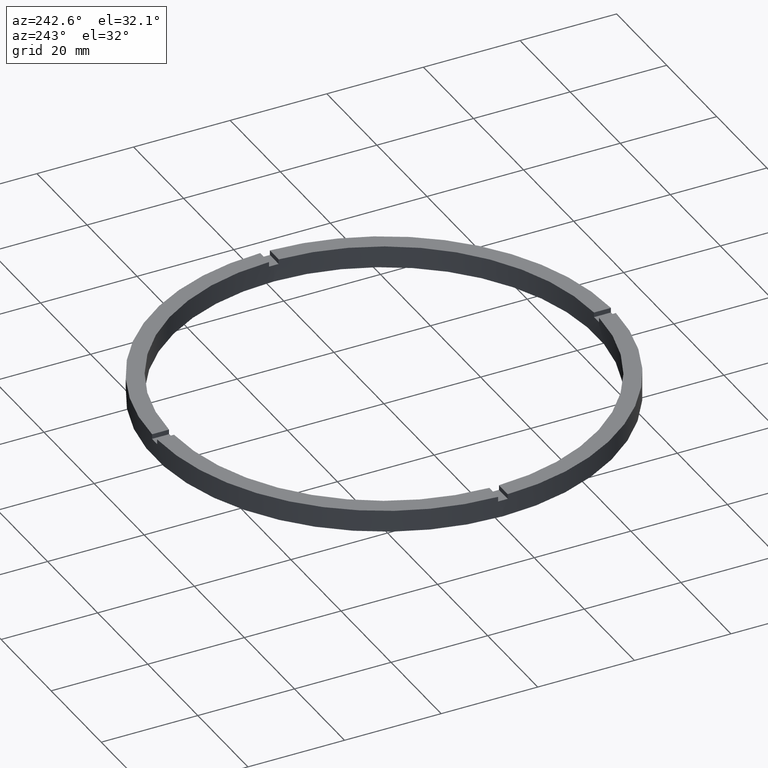
[diagram: clean part render]
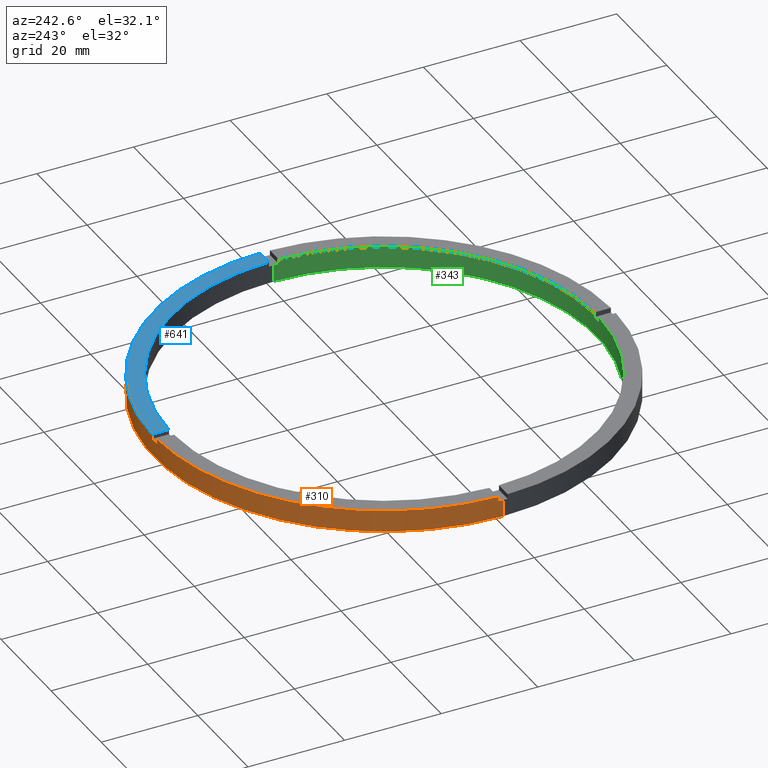
[diagram: same view with three faces highlighted in distinct colors, each labeled with its STEP entity id]
A machine part, auxiliary view with three faces highlighted in distinct colors.
Their STEP definitions:

[orange] entity #310 — the highlighted cylindrical surface (partial cylindrical patch) has radius 47.5 mm, axis along (-0, -0, -1).
#32 = CARTESIAN_POINT ( 'NONE',  ( 0.000000000000000000, 0.000000000000000000, 3.499999999999999556 ) ) ;
#35 = CARTESIAN_POINT ( 'NONE',  ( 0.000000000000000000, 0.000000000000000000, 0.000000000000000000 ) ) ;
#39 = CARTESIAN_POINT ( 'NONE',  ( -47.48947251760120736, 0.9999999999999694689, 4.500000000000000000 ) ) ;
#49 = CARTESIAN_POINT ( 'NONE',  ( 47.48947251760121446, 0.9999999999998443467, 3.499999999999999556 ) ) ;
#64 = EDGE_CURVE ( 'NONE', #743, #190, #88, .T. ) ;
#67 = ORIENTED_EDGE ( 'NONE', *, *, #69, .F. ) ;
#68 = ORIENTED_EDGE ( 'NONE', *, *, #64, .T. ) ;
#69 = EDGE_CURVE ( 'NONE', #743, #478, #366, .T. ) ;
#70 = CARTESIAN_POINT ( 'NONE',  ( -47.50000000000000711, 0.000000000000000000, 0.000000000000000000 ) ) ;
#79 = AXIS2_PLACEMENT_3D ( 'NONE', #363, #173, #102 ) ;
#88 = LINE ( 'NONE', #369, #619 ) ;
#100 = CARTESIAN_POINT ( 'NONE',  ( 0.000000000000000000, 0.000000000000000000, 4.500000000000000000 ) ) ;
#102 = DIRECTION ( 'NONE',  ( 1.000000000000000000, 0.000000000000000000, 0.000000000000000000 ) ) ;
#111 = VECTOR ( 'NONE', #268, 1000.000000000000000 ) ;
#112 = CIRCLE ( 'NONE', #79, 47.50000000000000711 ) ;
#128 = VECTOR ( 'NONE', #392, 1000.000000000000000 ) ;
#139 = CARTESIAN_POINT ( 'NONE',  ( 47.50000000000000711, 5.817072295949929004E-15, 3.499999999999999556 ) ) ;
#153 = EDGE_CURVE ( 'NONE', #741, #479, #112, .T. ) ;
#155 = DIRECTION ( 'NONE',  ( 1.000000000000000000, 0.000000000000000000, 0.000000000000000000 ) ) ;
#171 = CARTESIAN_POINT ( 'NONE',  ( 47.48947251760121446, 0.9999999999998443467, 4.500000000000000000 ) ) ;
#173 = DIRECTION ( 'NONE',  ( 0.000000000000000000, 0.000000000000000000, 1.000000000000000000 ) ) ;
#175 = ORIENTED_EDGE ( 'NONE', *, *, #360, .T. ) ;
#178 = DIRECTION ( 'NONE',  ( 0.000000000000000000, -0.000000000000000000, 1.000000000000000000 ) ) ;
#179 = ORIENTED_EDGE ( 'NONE', *, *, #649, .T. ) ;
#186 = VERTEX_POINT ( 'NONE', #171 ) ;
#190 = VERTEX_POINT ( 'NONE', #423 ) ;
#196 = CARTESIAN_POINT ( 'NONE',  ( -47.50000000000000711, 0.000000000000000000, 4.500000000000000000 ) ) ;
#202 = VERTEX_POINT ( 'NONE', #70 ) ;
#209 = DIRECTION ( 'NONE',  ( 0.000000000000000000, 0.000000000000000000, 1.000000000000000000 ) ) ;
#212 = ORIENTED_EDGE ( 'NONE', *, *, #468, .T. ) ;
#232 = CARTESIAN_POINT ( 'NONE',  ( 0.9999999999999735767, 47.48947251760120736, 4.500000000000000000 ) ) ;
#244 = CYLINDRICAL_SURFACE ( 'NONE', #302, 47.50000000000000711 ) ;
#245 = CIRCLE ( 'NONE', #431, 47.50000000000000711 ) ;
#253 = DIRECTION ( 'NONE',  ( -0.000000000000000000, -0.000000000000000000, -1.000000000000000000 ) ) ;
#254 = VECTOR ( 'NONE', #464, 1000.000000000000000 ) ;
#256 = LINE ( 'NONE', #593, #254 ) ;
#268 = DIRECTION ( 'NONE',  ( -0.000000000000000000, -0.000000000000000000, -1.000000000000000000 ) ) ;
#269 = EDGE_CURVE ( 'NONE', #346, #699, #245, .T. ) ;
#271 = FACE_OUTER_BOUND ( 'NONE', #336, .T. ) ;
#289 = DIRECTION ( 'NONE',  ( 1.000000000000000000, 0.000000000000000000, 0.000000000000000000 ) ) ;
#292 = EDGE_CURVE ( 'NONE', #186, #745, #533, .T. ) ;
#302 = AXIS2_PLACEMENT_3D ( 'NONE', #558, #253, #604 ) ;
#305 = DIRECTION ( 'NONE',  ( 0.000000000000000000, 0.000000000000000000, 1.000000000000000000 ) ) ;
#310 = ADVANCED_FACE ( 'NONE', ( #271 ), #244, .T. ) ;
#323 = ORIENTED_EDGE ( 'NONE', *, *, #710, .F. ) ;
#324 = VERTEX_POINT ( 'NONE', #648 ) ;
#328 = ORIENTED_EDGE ( 'NONE', *, *, #624, .F. ) ;
#330 = DIRECTION ( 'NONE',  ( -0.000000000000000000, -0.000000000000000000, -1.000000000000000000 ) ) ;
#336 = EDGE_LOOP ( 'NONE', ( #67, #68, #179, #328, #323, #212, #410, #692, #476, #340, #701, #175 ) ) ;
#338 = CARTESIAN_POINT ( 'NONE',  ( -47.48947251760120736, 0.9999999999999694689, 4.500000000000000000 ) ) ;
#340 = ORIENTED_EDGE ( 'NONE', *, *, #680, .T. ) ;
#346 = VERTEX_POINT ( 'NONE', #696 ) ;
#360 = EDGE_CURVE ( 'NONE', #186, #478, #256, .T. ) ;
#363 = CARTESIAN_POINT ( 'NONE',  ( 0.000000000000000000, 0.000000000000000000, 4.500000000000000000 ) ) ;
#365 = DIRECTION ( 'NONE',  ( 1.000000000000000000, 0.000000000000000000, 0.000000000000000000 ) ) ;
#366 = CIRCLE ( 'NONE', #514, 47.50000000000000711 ) ;
#369 = CARTESIAN_POINT ( 'NONE',  ( 47.50000000000000711, 5.817072295949929004E-15, 4.500000000000000000 ) ) ;
#380 = CIRCLE ( 'NONE', #777, 47.50000000000000711 ) ;
#383 = VECTOR ( 'NONE', #385, 1000.000000000000000 ) ;
#385 = DIRECTION ( 'NONE',  ( 0.000000000000000000, 0.000000000000000000, 1.000000000000000000 ) ) ;
#387 = DIRECTION ( 'NONE',  ( 1.000000000000000000, 0.000000000000000000, 0.000000000000000000 ) ) ;
#392 = DIRECTION ( 'NONE',  ( 0.000000000000000000, 0.000000000000000000, 1.000000000000000000 ) ) ;
#395 = CARTESIAN_POINT ( 'NONE',  ( -1.000000000000026423, 47.48947251760120736, 4.500000000000000000 ) ) ;
#398 = LINE ( 'NONE', #338, #383 ) ;
#406 = LINE ( 'NONE', #196, #421 ) ;
#410 = ORIENTED_EDGE ( 'NONE', *, *, #153, .F. ) ;
#415 = CIRCLE ( 'NONE', #446, 47.50000000000000711 ) ;
#417 = LINE ( 'NONE', #564, #111 ) ;
#421 = VECTOR ( 'NONE', #330, 1000.000000000000000 ) ;
#423 = CARTESIAN_POINT ( 'NONE',  ( 47.50000000000000711, 5.817072295949929004E-15, 0.000000000000000000 ) ) ;
#431 = AXIS2_PLACEMENT_3D ( 'NONE', #32, #178, #365 ) ;
#446 = AXIS2_PLACEMENT_3D ( 'NONE', #639, #682, #387 ) ;
#464 = DIRECTION ( 'NONE',  ( -0.000000000000000000, -0.000000000000000000, -1.000000000000000000 ) ) ;
#468 = EDGE_CURVE ( 'NONE', #510, #479, #398, .T. ) ;
#470 = CARTESIAN_POINT ( 'NONE',  ( 0.9999999999999735767, 47.48947251760120736, 4.500000000000000000 ) ) ;
#476 = ORIENTED_EDGE ( 'NONE', *, *, #269, .F. ) ;
#478 = VERTEX_POINT ( 'NONE', #49 ) ;
#479 = VERTEX_POINT ( 'NONE', #39 ) ;
#510 = VERTEX_POINT ( 'NONE', #683 ) ;
#514 = AXIS2_PLACEMENT_3D ( 'NONE', #756, #209, #289 ) ;
#525 = DIRECTION ( 'NONE',  ( -0.000000000000000000, -0.000000000000000000, -1.000000000000000000 ) ) ;
#533 = CIRCLE ( 'NONE', #609, 47.50000000000000711 ) ;
#558 = CARTESIAN_POINT ( 'NONE',  ( 0.000000000000000000, 0.000000000000000000, 4.500000000000000000 ) ) ;
#564 = CARTESIAN_POINT ( 'NONE',  ( -1.000000000000026423, 47.48947251760120736, 4.500000000000000000 ) ) ;
#592 = CARTESIAN_POINT ( 'NONE',  ( -1.000000000000026423, 47.48947251760120736, 3.499999999999999556 ) ) ;
#593 = CARTESIAN_POINT ( 'NONE',  ( 47.48947251760121446, 0.9999999999998443467, 4.500000000000000000 ) ) ;
#596 = EDGE_CURVE ( 'NONE', #741, #699, #417, .T. ) ;
#604 = DIRECTION ( 'NONE',  ( -1.000000000000000000, 0.000000000000000000, 0.000000000000000000 ) ) ;
#609 = AXIS2_PLACEMENT_3D ( 'NONE', #100, #305, #155 ) ;
#619 = VECTOR ( 'NONE', #525, 1000.000000000000000 ) ;
#624 = EDGE_CURVE ( 'NONE', #324, #202, #406, .T. ) ;
#628 = DIRECTION ( 'NONE',  ( 1.000000000000000000, 0.000000000000000000, 0.000000000000000000 ) ) ;
#639 = CARTESIAN_POINT ( 'NONE',  ( 0.000000000000000000, 0.000000000000000000, 3.499999999999999556 ) ) ;
#648 = CARTESIAN_POINT ( 'NONE',  ( -47.50000000000000711, 0.000000000000000000, 3.499999999999999556 ) ) ;
#649 = EDGE_CURVE ( 'NONE', #190, #202, #380, .T. ) ;
#658 = LINE ( 'NONE', #470, #128 ) ;
#680 = EDGE_CURVE ( 'NONE', #346, #745, #658, .T. ) ;
#682 = DIRECTION ( 'NONE',  ( 0.000000000000000000, 0.000000000000000000, 1.000000000000000000 ) ) ;
#683 = CARTESIAN_POINT ( 'NONE',  ( -47.48947251760120736, 0.9999999999999694689, 3.499999999999999556 ) ) ;
#692 = ORIENTED_EDGE ( 'NONE', *, *, #596, .T. ) ;
#696 = CARTESIAN_POINT ( 'NONE',  ( 0.9999999999999735767, 47.48947251760120736, 3.499999999999999556 ) ) ;
#699 = VERTEX_POINT ( 'NONE', #592 ) ;
#701 = ORIENTED_EDGE ( 'NONE', *, *, #292, .F. ) ;
#710 = EDGE_CURVE ( 'NONE', #510, #324, #415, .T. ) ;
#741 = VERTEX_POINT ( 'NONE', #395 ) ;
#743 = VERTEX_POINT ( 'NONE', #139 ) ;
#745 = VERTEX_POINT ( 'NONE', #232 ) ;
#756 = CARTESIAN_POINT ( 'NONE',  ( 0.000000000000000000, 0.000000000000000000, 3.499999999999999556 ) ) ;
#765 = DIRECTION ( 'NONE',  ( 0.000000000000000000, 0.000000000000000000, 1.000000000000000000 ) ) ;
#777 = AXIS2_PLACEMENT_3D ( 'NONE', #35, #765, #628 ) ;

[blue] entity #641 — the highlighted planar face has unit normal (0, 0, 1).
#7 = LINE ( 'NONE', #95, #544 ) ;
#87 = DIRECTION ( 'NONE',  ( 0.000000000000000000, 1.000000000000000000, 0.000000000000000000 ) ) ;
#95 = CARTESIAN_POINT ( 'NONE',  ( 0.9999999999999735767, 37.50000000000000711, 4.500000000000000000 ) ) ;
#96 = ORIENTED_EDGE ( 'NONE', *, *, #638, .F. ) ;
#100 = CARTESIAN_POINT ( 'NONE',  ( 0.000000000000000000, 0.000000000000000000, 4.500000000000000000 ) ) ;
#109 = EDGE_CURVE ( 'NONE', #186, #397, #118, .T. ) ;
#118 = LINE ( 'NONE', #448, #382 ) ;
#135 = ORIENTED_EDGE ( 'NONE', *, *, #109, .F. ) ;
#142 = CARTESIAN_POINT ( 'NONE',  ( 0.000000000000000000, 0.000000000000000000, 4.500000000000000000 ) ) ;
#149 = AXIS2_PLACEMENT_3D ( 'NONE', #226, #291, #759 ) ;
#151 = ORIENTED_EDGE ( 'NONE', *, *, #377, .F. ) ;
#155 = DIRECTION ( 'NONE',  ( 1.000000000000000000, 0.000000000000000000, 0.000000000000000000 ) ) ;
#171 = CARTESIAN_POINT ( 'NONE',  ( 47.48947251760121446, 0.9999999999998443467, 4.500000000000000000 ) ) ;
#186 = VERTEX_POINT ( 'NONE', #171 ) ;
#215 = DIRECTION ( 'NONE',  ( 0.000000000000000000, 0.000000000000000000, 1.000000000000000000 ) ) ;
#226 = CARTESIAN_POINT ( 'NONE',  ( 0.000000000000000000, 0.000000000000000000, 4.500000000000000000 ) ) ;
#232 = CARTESIAN_POINT ( 'NONE',  ( 0.9999999999999735767, 47.48947251760120736, 4.500000000000000000 ) ) ;
#252 = AXIS2_PLACEMENT_3D ( 'NONE', #142, #215, #632 ) ;
#291 = DIRECTION ( 'NONE',  ( 0.000000000000000000, 0.000000000000000000, 1.000000000000000000 ) ) ;
#292 = EDGE_CURVE ( 'NONE', #186, #745, #533, .T. ) ;
#305 = DIRECTION ( 'NONE',  ( 0.000000000000000000, 0.000000000000000000, 1.000000000000000000 ) ) ;
#377 = EDGE_CURVE ( 'NONE', #691, #745, #7, .T. ) ;
#382 = VECTOR ( 'NONE', #531, 1000.000000000000000 ) ;
#394 = CARTESIAN_POINT ( 'NONE',  ( 43.98863489584554287, 0.9999999999998441247, 4.500000000000000000 ) ) ;
#397 = VERTEX_POINT ( 'NONE', #394 ) ;
#425 = FACE_OUTER_BOUND ( 'NONE', #737, .T. ) ;
#448 = CARTESIAN_POINT ( 'NONE',  ( 37.50000000000000000, 0.9999999999998436806, 4.500000000000000000 ) ) ;
#489 = ORIENTED_EDGE ( 'NONE', *, *, #292, .T. ) ;
#531 = DIRECTION ( 'NONE',  ( -1.000000000000000000, -6.505213034913025371E-17, -0.000000000000000000 ) ) ;
#533 = CIRCLE ( 'NONE', #609, 47.50000000000000711 ) ;
#544 = VECTOR ( 'NONE', #87, 1000.000000000000000 ) ;
#588 = CARTESIAN_POINT ( 'NONE',  ( 0.9999999999999735767, 43.98863489584554287, 4.500000000000000000 ) ) ;
#609 = AXIS2_PLACEMENT_3D ( 'NONE', #100, #305, #155 ) ;
#632 = DIRECTION ( 'NONE',  ( 1.000000000000000000, 0.000000000000000000, -0.000000000000000000 ) ) ;
#638 = EDGE_CURVE ( 'NONE', #397, #691, #663, .T. ) ;
#641 = ADVANCED_FACE ( 'NONE', ( #425 ), #679, .T. ) ;
#663 = CIRCLE ( 'NONE', #149, 44.00000000000000000 ) ;
#679 = PLANE ( 'NONE',  #252 ) ;
#691 = VERTEX_POINT ( 'NONE', #588 ) ;
#737 = EDGE_LOOP ( 'NONE', ( #151, #96, #135, #489 ) ) ;
#745 = VERTEX_POINT ( 'NONE', #232 ) ;
#759 = DIRECTION ( 'NONE',  ( 1.000000000000000000, 0.000000000000000000, 0.000000000000000000 ) ) ;

[green] entity #343 — the highlighted cylindrical surface (partial cylindrical patch) has radius 44 mm, axis along (-0, -0, -1).
#10 = CARTESIAN_POINT ( 'NONE',  ( -43.98863489584553577, -1.000000000000029976, 3.499999999999999556 ) ) ;
#11 = CARTESIAN_POINT ( 'NONE',  ( -1.000000000000158096, -43.98863489584553577, 4.500000000000000000 ) ) ;
#15 = DIRECTION ( 'NONE',  ( 0.000000000000000000, 0.000000000000000000, 1.000000000000000000 ) ) ;
#20 = CARTESIAN_POINT ( 'NONE',  ( 43.98863489584553577, -1.000000000000155875, 4.500000000000000000 ) ) ;
#33 = EDGE_CURVE ( 'NONE', #207, #458, #613, .T. ) ;
#38 = EDGE_CURVE ( 'NONE', #751, #335, #350, .T. ) ;
#48 = DIRECTION ( 'NONE',  ( 1.000000000000000000, 0.000000000000000000, 0.000000000000000000 ) ) ;
#50 = CARTESIAN_POINT ( 'NONE',  ( -44.00000000000000000, 0.000000000000000000, 3.499999999999999556 ) ) ;
#61 = AXIS2_PLACEMENT_3D ( 'NONE', #119, #185, #77 ) ;
#66 = CARTESIAN_POINT ( 'NONE',  ( 0.000000000000000000, 0.000000000000000000, 4.500000000000000000 ) ) ;
#77 = DIRECTION ( 'NONE',  ( 1.000000000000000000, 0.000000000000000000, 0.000000000000000000 ) ) ;
#89 = EDGE_CURVE ( 'NONE', #458, #712, #627, .T. ) ;
#90 = CARTESIAN_POINT ( 'NONE',  ( 0.9999999999998419042, -43.98863489584554287, 4.500000000000000000 ) ) ;
#91 = AXIS2_PLACEMENT_3D ( 'NONE', #364, #662, #608 ) ;
#104 = DIRECTION ( 'NONE',  ( -0.000000000000000000, -0.000000000000000000, -1.000000000000000000 ) ) ;
#119 = CARTESIAN_POINT ( 'NONE',  ( 0.000000000000000000, 0.000000000000000000, 4.500000000000000000 ) ) ;
#122 = CARTESIAN_POINT ( 'NONE',  ( -43.98863489584553577, -1.000000000000029976, 4.500000000000000000 ) ) ;
#127 = CIRCLE ( 'NONE', #285, 44.00000000000000000 ) ;
#129 = DIRECTION ( 'NONE',  ( 0.000000000000000000, 0.000000000000000000, 1.000000000000000000 ) ) ;
#131 = CARTESIAN_POINT ( 'NONE',  ( -44.00000000000000000, 0.000000000000000000, 0.000000000000000000 ) ) ;
#133 = VECTOR ( 'NONE', #435, 1000.000000000000000 ) ;
#144 = VECTOR ( 'NONE', #742, 1000.000000000000000 ) ;
#163 = DIRECTION ( 'NONE',  ( 0.000000000000000000, 0.000000000000000000, 1.000000000000000000 ) ) ;
#166 = ORIENTED_EDGE ( 'NONE', *, *, #612, .T. ) ;
#170 = VERTEX_POINT ( 'NONE', #11 ) ;
#183 = ORIENTED_EDGE ( 'NONE', *, *, #606, .F. ) ;
#185 = DIRECTION ( 'NONE',  ( 0.000000000000000000, 0.000000000000000000, 1.000000000000000000 ) ) ;
#207 = VERTEX_POINT ( 'NONE', #509 ) ;
#208 = ORIENTED_EDGE ( 'NONE', *, *, #325, .F. ) ;
#213 = VERTEX_POINT ( 'NONE', #521 ) ;
#233 = ORIENTED_EDGE ( 'NONE', *, *, #38, .T. ) ;
#236 = DIRECTION ( 'NONE',  ( -1.000000000000000000, 0.000000000000000000, 0.000000000000000000 ) ) ;
#246 = DIRECTION ( 'NONE',  ( 1.000000000000000000, 0.000000000000000000, 0.000000000000000000 ) ) ;
#247 = CIRCLE ( 'NONE', #361, 44.00000000000000000 ) ;
#250 = LINE ( 'NONE', #307, #528 ) ;
#251 = CARTESIAN_POINT ( 'NONE',  ( 0.000000000000000000, 0.000000000000000000, 3.499999999999999556 ) ) ;
#263 = DIRECTION ( 'NONE',  ( 1.000000000000000000, 0.000000000000000000, 0.000000000000000000 ) ) ;
#280 = EDGE_CURVE ( 'NONE', #694, #726, #247, .T. ) ;
#285 = AXIS2_PLACEMENT_3D ( 'NONE', #286, #129, #48 ) ;
#286 = CARTESIAN_POINT ( 'NONE',  ( 0.000000000000000000, 0.000000000000000000, 0.000000000000000000 ) ) ;
#301 = CARTESIAN_POINT ( 'NONE',  ( 43.98863489584553577, -1.000000000000155875, 4.500000000000000000 ) ) ;
#307 = CARTESIAN_POINT ( 'NONE',  ( 0.9999999999998419042, -43.98863489584554287, 4.500000000000000000 ) ) ;
#308 = EDGE_CURVE ( 'NONE', #751, #461, #776, .T. ) ;
#325 = EDGE_CURVE ( 'NONE', #694, #455, #250, .T. ) ;
#335 = VERTEX_POINT ( 'NONE', #10 ) ;
#343 = ADVANCED_FACE ( 'NONE', ( #771 ), #540, .F. ) ;
#350 = CIRCLE ( 'NONE', #655, 44.00000000000000000 ) ;
#361 = AXIS2_PLACEMENT_3D ( 'NONE', #614, #163, #246 ) ;
#364 = CARTESIAN_POINT ( 'NONE',  ( 0.000000000000000000, 0.000000000000000000, 3.499999999999999556 ) ) ;
#367 = CARTESIAN_POINT ( 'NONE',  ( -1.000000000000158096, -43.98863489584553577, 4.500000000000000000 ) ) ;
#388 = LINE ( 'NONE', #367, #646 ) ;
#390 = AXIS2_PLACEMENT_3D ( 'NONE', #66, #774, #236 ) ;
#402 = CIRCLE ( 'NONE', #61, 44.00000000000000000 ) ;
#409 = CARTESIAN_POINT ( 'NONE',  ( 0.9999999999998419042, -43.98863489584554287, 3.499999999999999556 ) ) ;
#413 = LINE ( 'NONE', #122, #133 ) ;
#435 = DIRECTION ( 'NONE',  ( -0.000000000000000000, -0.000000000000000000, -1.000000000000000000 ) ) ;
#445 = ORIENTED_EDGE ( 'NONE', *, *, #602, .F. ) ;
#453 = ORIENTED_EDGE ( 'NONE', *, *, #308, .F. ) ;
#455 = VERTEX_POINT ( 'NONE', #409 ) ;
#458 = VERTEX_POINT ( 'NONE', #706 ) ;
#459 = ORIENTED_EDGE ( 'NONE', *, *, #280, .T. ) ;
#461 = VERTEX_POINT ( 'NONE', #131 ) ;
#473 = EDGE_LOOP ( 'NONE', ( #689, #589, #474, #453, #233, #707, #166, #445, #693, #208, #459, #183 ) ) ;
#474 = ORIENTED_EDGE ( 'NONE', *, *, #669, .F. ) ;
#503 = DIRECTION ( 'NONE',  ( -0.000000000000000000, -0.000000000000000000, -1.000000000000000000 ) ) ;
#509 = CARTESIAN_POINT ( 'NONE',  ( 43.98863489584553577, -1.000000000000155875, 3.499999999999999556 ) ) ;
#521 = CARTESIAN_POINT ( 'NONE',  ( -43.98863489584553577, -1.000000000000029976, 4.500000000000000000 ) ) ;
#528 = VECTOR ( 'NONE', #104, 1000.000000000000000 ) ;
#540 = CYLINDRICAL_SURFACE ( 'NONE', #390, 44.00000000000000000 ) ;
#587 = CARTESIAN_POINT ( 'NONE',  ( -1.000000000000158096, -43.98863489584553577, 3.499999999999999556 ) ) ;
#589 = ORIENTED_EDGE ( 'NONE', *, *, #89, .T. ) ;
#598 = DIRECTION ( 'NONE',  ( -0.000000000000000000, -0.000000000000000000, -1.000000000000000000 ) ) ;
#599 = EDGE_CURVE ( 'NONE', #718, #455, #670, .T. ) ;
#602 = EDGE_CURVE ( 'NONE', #718, #170, #388, .T. ) ;
#606 = EDGE_CURVE ( 'NONE', #207, #726, #671, .T. ) ;
#608 = DIRECTION ( 'NONE',  ( 1.000000000000000000, 0.000000000000000000, 0.000000000000000000 ) ) ;
#612 = EDGE_CURVE ( 'NONE', #213, #170, #402, .T. ) ;
#613 = CIRCLE ( 'NONE', #779, 44.00000000000000000 ) ;
#614 = CARTESIAN_POINT ( 'NONE',  ( 0.000000000000000000, 0.000000000000000000, 4.500000000000000000 ) ) ;
#622 = EDGE_CURVE ( 'NONE', #213, #335, #413, .T. ) ;
#627 = LINE ( 'NONE', #770, #629 ) ;
#629 = VECTOR ( 'NONE', #598, 1000.000000000000000 ) ;
#646 = VECTOR ( 'NONE', #735, 1000.000000000000000 ) ;
#655 = AXIS2_PLACEMENT_3D ( 'NONE', #251, #15, #263 ) ;
#659 = DIRECTION ( 'NONE',  ( 0.000000000000000000, 0.000000000000000000, 1.000000000000000000 ) ) ;
#662 = DIRECTION ( 'NONE',  ( -0.000000000000000000, 0.000000000000000000, 1.000000000000000000 ) ) ;
#669 = EDGE_CURVE ( 'NONE', #461, #712, #127, .T. ) ;
#670 = CIRCLE ( 'NONE', #91, 44.00000000000000000 ) ;
#671 = LINE ( 'NONE', #20, #144 ) ;
#689 = ORIENTED_EDGE ( 'NONE', *, *, #33, .T. ) ;
#693 = ORIENTED_EDGE ( 'NONE', *, *, #599, .T. ) ;
#694 = VERTEX_POINT ( 'NONE', #90 ) ;
#706 = CARTESIAN_POINT ( 'NONE',  ( 44.00000000000000000, 5.388445916248353619E-15, 3.499999999999999556 ) ) ;
#707 = ORIENTED_EDGE ( 'NONE', *, *, #622, .F. ) ;
#712 = VERTEX_POINT ( 'NONE', #767 ) ;
#714 = DIRECTION ( 'NONE',  ( 1.000000000000000000, 0.000000000000000000, 0.000000000000000000 ) ) ;
#716 = CARTESIAN_POINT ( 'NONE',  ( -44.00000000000000000, 0.000000000000000000, 4.500000000000000000 ) ) ;
#718 = VERTEX_POINT ( 'NONE', #587 ) ;
#726 = VERTEX_POINT ( 'NONE', #301 ) ;
#735 = DIRECTION ( 'NONE',  ( 0.000000000000000000, 0.000000000000000000, 1.000000000000000000 ) ) ;
#742 = DIRECTION ( 'NONE',  ( 0.000000000000000000, 0.000000000000000000, 1.000000000000000000 ) ) ;
#744 = CARTESIAN_POINT ( 'NONE',  ( 0.000000000000000000, 0.000000000000000000, 3.499999999999999556 ) ) ;
#751 = VERTEX_POINT ( 'NONE', #50 ) ;
#767 = CARTESIAN_POINT ( 'NONE',  ( 44.00000000000000000, 5.388445916248353619E-15, 0.000000000000000000 ) ) ;
#768 = VECTOR ( 'NONE', #503, 1000.000000000000000 ) ;
#770 = CARTESIAN_POINT ( 'NONE',  ( 44.00000000000000000, 5.388445916248353619E-15, 4.500000000000000000 ) ) ;
#771 = FACE_OUTER_BOUND ( 'NONE', #473, .T. ) ;
#774 = DIRECTION ( 'NONE',  ( -0.000000000000000000, -0.000000000000000000, -1.000000000000000000 ) ) ;
#776 = LINE ( 'NONE', #716, #768 ) ;
#779 = AXIS2_PLACEMENT_3D ( 'NONE', #744, #659, #714 ) ;